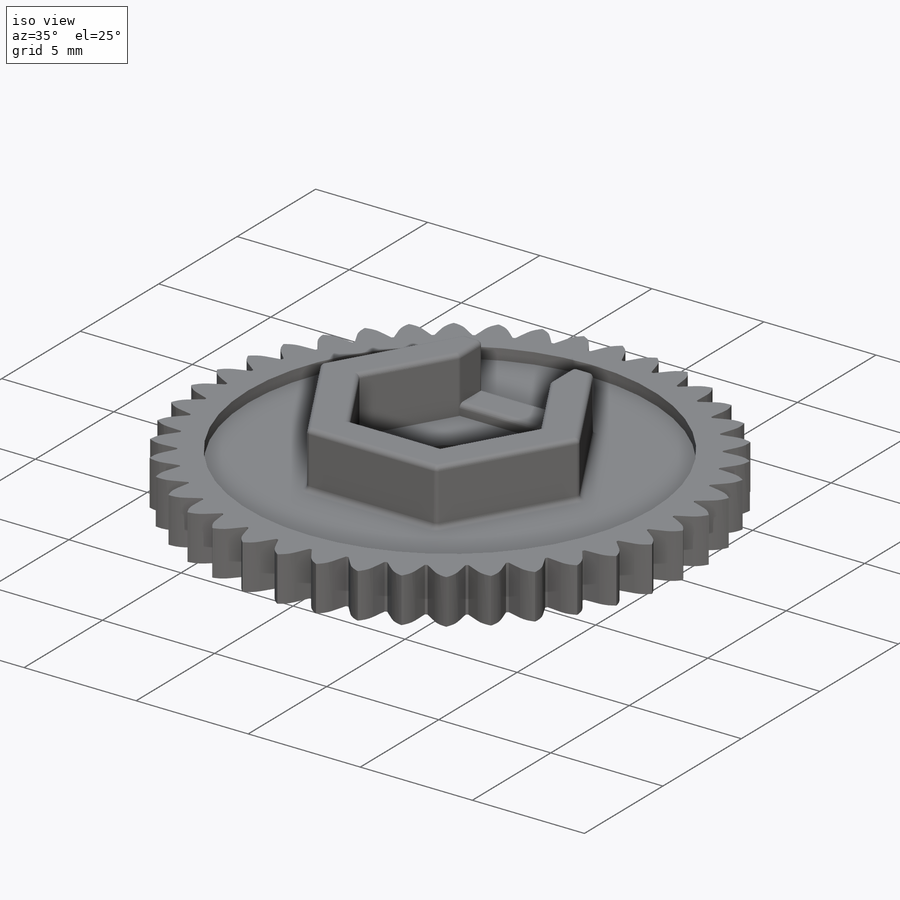
[diagram: iso view]
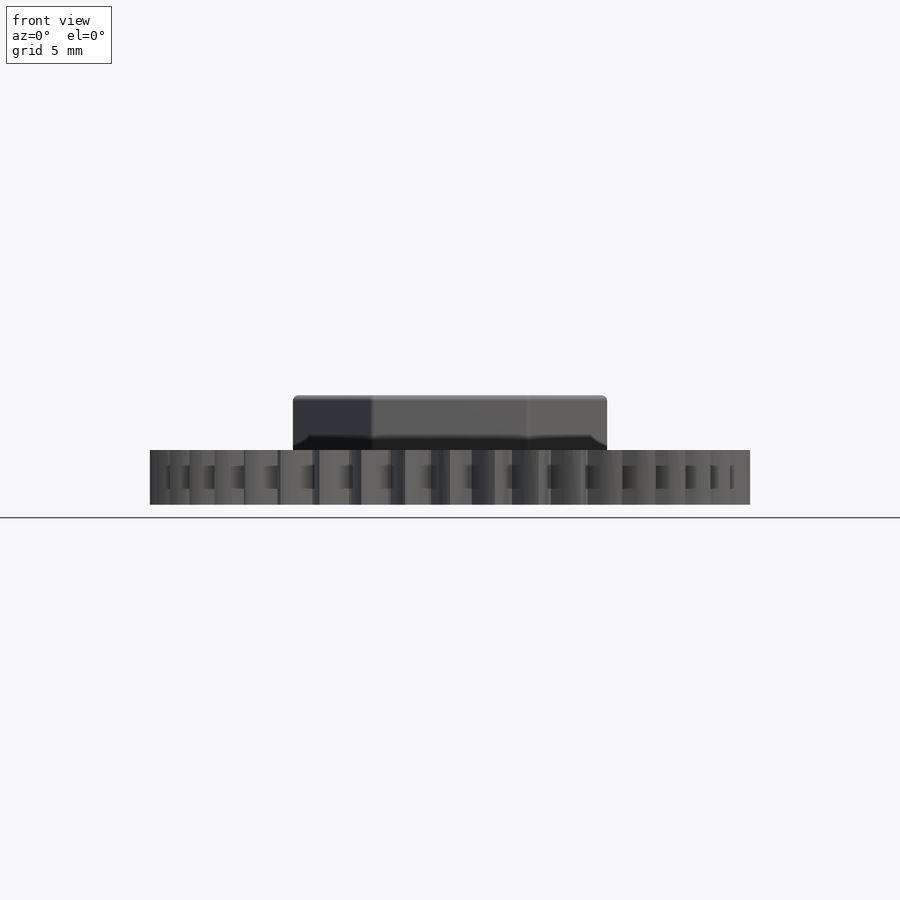
[diagram: front view]
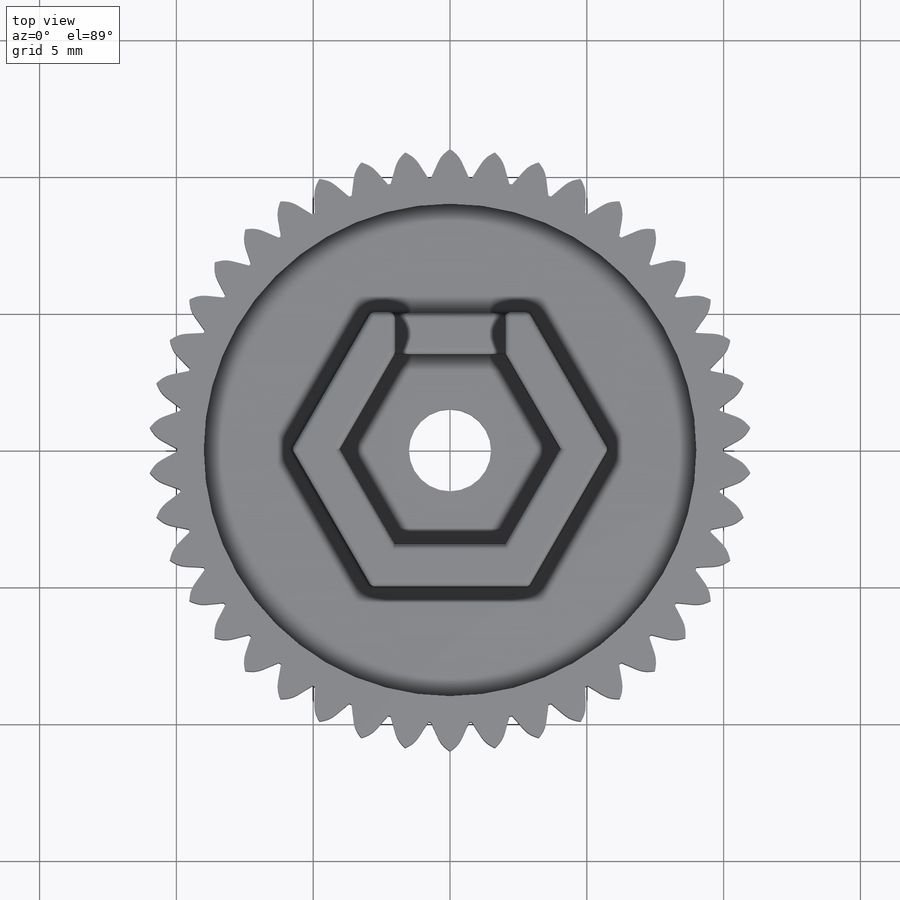
[diagram: top view]
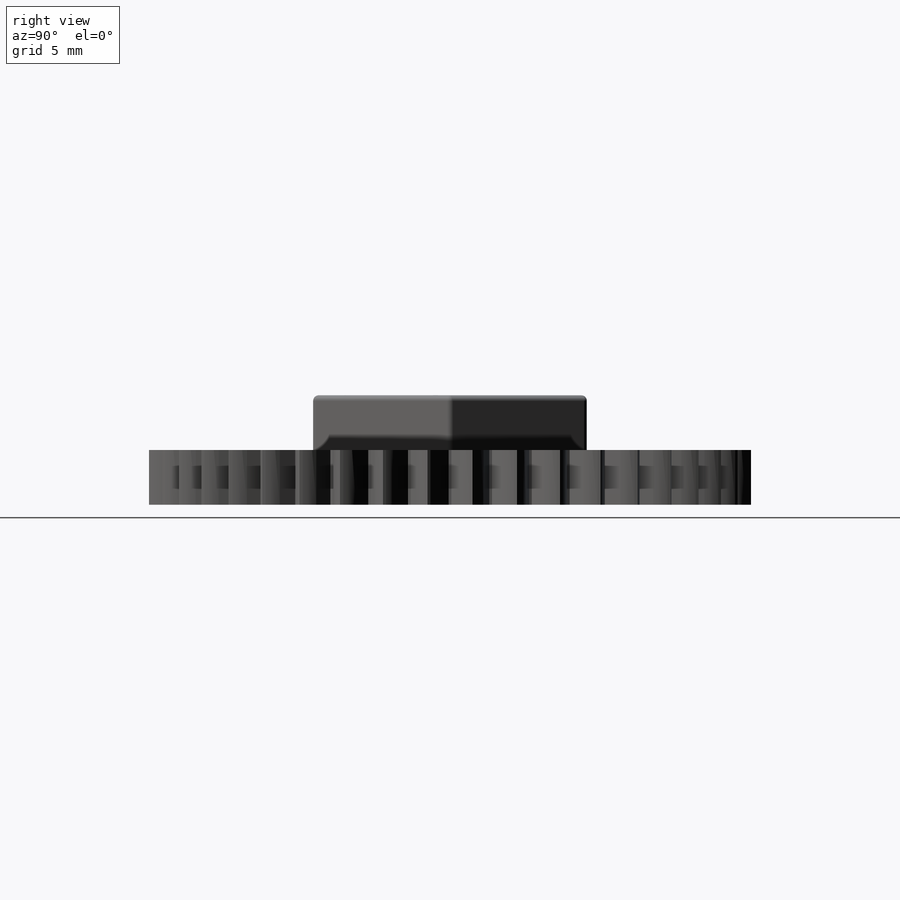
[diagram: right view]
SOLIDWORKS PART (.sldprt)
format: sldprt  version: not decoded by parser v0  size: 837,120 bytes
history: native  units: mm
features: sketch x7, cut_extrude x5, extrude x2, fillet x2, material x1 (+16 scaffold rows collapsed)
feature tree (33):
  scaffold x16  (default folders/planes/origin — collapsed)
  material  "Polyethylene Cross-Linked"
  sketch  "Sketch1"  dims[D1=22.0mm]
  extrude  "Boss-Extrude1"  Depth=2mm
  sketch  "Sketch2"  dims[D4=1.0mm D2=1.0mm D3=0.05mm D1=42.0 D5=42.0]
  cut_extrude  "Cut-Extrude1"  Depth=2mm
  sketch  "Sketch3"  dims[D1=11.0mm]
  cut_extrude  "Cut-Extrude2"  Depth=0.5mm
  sketch  "Sketch4"  dims[D1=13.0mm D2=12.0mm]
  cut_extrude  "Cut-Extrude3"  Depth=0.5mm
  sketch  "Sketch8"  dims[D1=10.0mm D2=1.5mm]
  extrude  "Boss-Extrude4"  Depth=2.5mm
  sketch  "Sketch9"  dims[D1=0.0mm]
  cut_extrude  "Cut-Extrude5"  Depth=2mm
  fillet  "Fillet2"  Radius=0.2mm
  sketch  "Sketch10"  dims[D1=3.0mm]
  cut_extrude  "Cut-Extrude6"  [1 undecoded]
  fillet  "Fillet3"  Radius=0.2mm
decode coverage: 15 of 16 modeling features carry decoded parameters
note: 1 parameter value undecoded
note: suppression state not decoded; provenance and decode notes live in map.json
